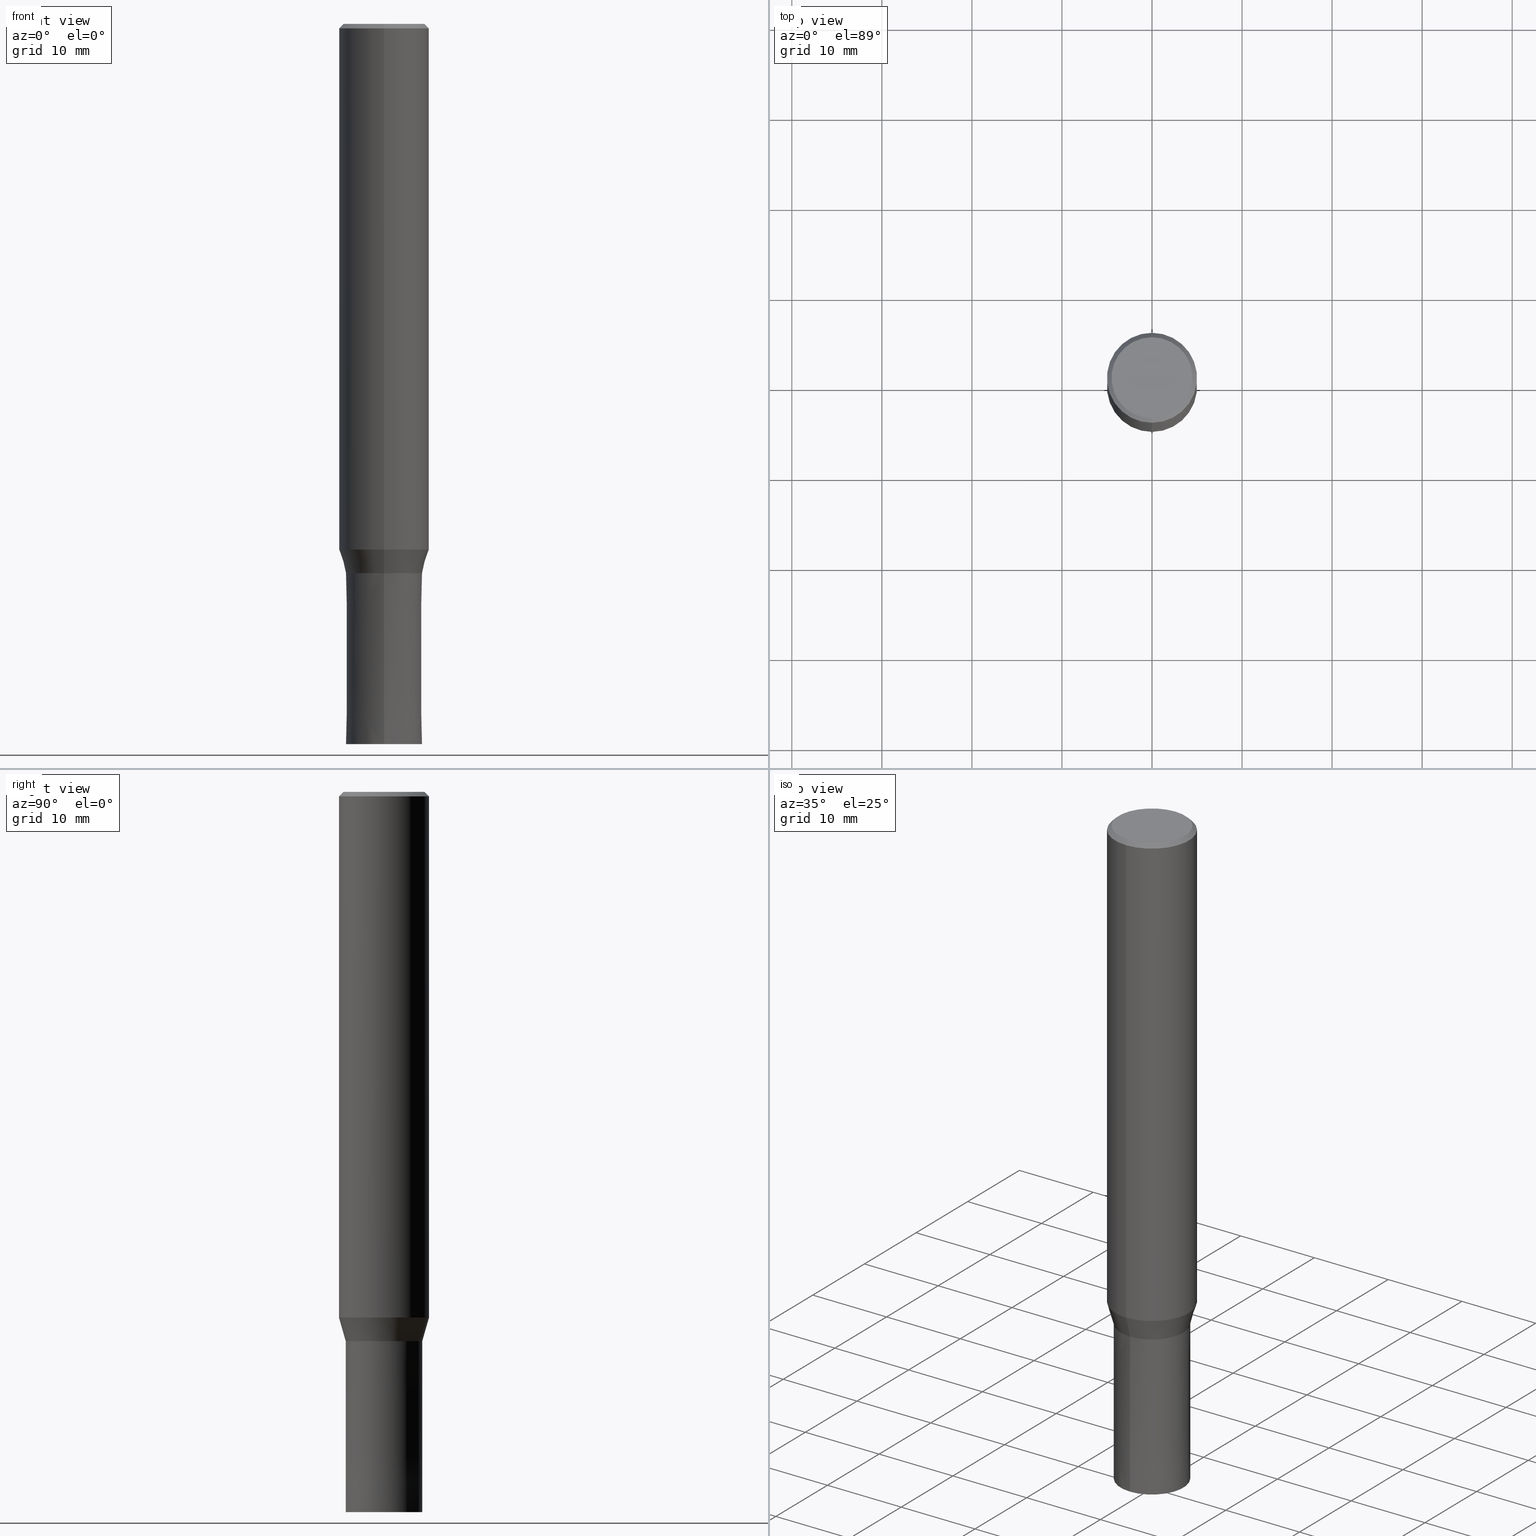
[diagram: canonical four-view strip — front | top / right | iso, engineering-drawing reading convention]
A machine part, canonical four-view strip (front | top / right | iso — engineering-drawing reading convention). The complete STEP part file that produces these views, byte-faithful:
ISO-10303-21;
HEADER;
FILE_DESCRIPTION(('no description'),'unknown implementation level');
FILE_NAME('CZS4085-1900-Huellk.stp','  ',('CIMSOURCE GmbH'),('CADClick - KiM GmbH - www.kimweb.de'),'unknown preprocess','ACIS','unknown authorization');
FILE_SCHEMA(('automotive_design'));
ENDSEC;
DATA;
#1=MECHANICAL_DESIGN_GEOMETRIC_PRESENTATION_REPRESENTATION(' ',(#14,#15,#16,#17,#18,#19,#20,#21,#22,#23,#24,#25,#26,#27,#28,#29,#30,#31,#32,#33,#34,#35,#36,#37,#38,#39,#40,#41,#42,#43,#44,#45,#46,#47,#48,#49,#50,#51,#52,#53,#54,#55,#56,#57,#58,#59,#60,#61,#62,#63,#64),#10);
#2=PRODUCT_DEFINITION_CONTEXT('',#65,'design');
#3=APPLICATION_PROTOCOL_DEFINITION('INTERNATIONAL STANDARD','automotive_design',1994,#65);
#4=PRODUCT_CATEGORY_RELATIONSHIP('NONE','NONE',#66,#67);
#5=SHAPE_DEFINITION_REPRESENTATION(#68,#69);
#6=PRODUCT_DEFINITION_CONTEXT('',#70,'design');
#7=APPLICATION_PROTOCOL_DEFINITION('INTERNATIONAL STANDARD','automotive_design',1994,#70);
#8=PRODUCT_CATEGORY_RELATIONSHIP('NONE','NONE',#71,#72);
#9=SHAPE_DEFINITION_REPRESENTATION(#73,#74);
#10= (GEOMETRIC_REPRESENTATION_CONTEXT(3)GLOBAL_UNCERTAINTY_ASSIGNED_CONTEXT((#77))GLOBAL_UNIT_ASSIGNED_CONTEXT((#79,#80,#81))REPRESENTATION_CONTEXT('NONE','WORKSPACE'));
#14=STYLED_ITEM('',(#83),#84);
#15=STYLED_ITEM('',(#85),#86);
#16=STYLED_ITEM('',(#87),#88);
#17=STYLED_ITEM('',(#89),#90);
#18=STYLED_ITEM('',(#91),#92);
#19=STYLED_ITEM('',(#93),#94);
#20=STYLED_ITEM('',(#95),#96);
#21=STYLED_ITEM('',(#97),#98);
#22=STYLED_ITEM('',(#99),#100);
#23=STYLED_ITEM('',(#101),#102);
#24=STYLED_ITEM('',(#103),#104);
#25=STYLED_ITEM('',(#105),#106);
#26=STYLED_ITEM('',(#107),#108);
#27=STYLED_ITEM('',(#109),#110);
#28=STYLED_ITEM('',(#111),#112);
#29=STYLED_ITEM('',(#113),#114);
#30=STYLED_ITEM('',(#115),#116);
#31=STYLED_ITEM('',(#117),#118);
#32=STYLED_ITEM('',(#119),#120);
#33=STYLED_ITEM('',(#121),#122);
#34=STYLED_ITEM('',(#123),#124);
#35=STYLED_ITEM('',(#125),#126);
#36=STYLED_ITEM('',(#127),#128);
#37=STYLED_ITEM('',(#129),#130);
#38=STYLED_ITEM('',(#131),#132);
#39=STYLED_ITEM('',(#133),#134);
#40=STYLED_ITEM('',(#135),#136);
#41=STYLED_ITEM('',(#137),#138);
#42=STYLED_ITEM('',(#139),#140);
#43=STYLED_ITEM('',(#141),#142);
#44=STYLED_ITEM('',(#143),#144);
#45=STYLED_ITEM('',(#145),#146);
#46=STYLED_ITEM('',(#147),#148);
#47=STYLED_ITEM('',(#149),#150);
#48=STYLED_ITEM('',(#151),#152);
#49=STYLED_ITEM('',(#153),#154);
#50=STYLED_ITEM('',(#155),#156);
#51=STYLED_ITEM('',(#157),#158);
#52=STYLED_ITEM('',(#159),#160);
#53=STYLED_ITEM('',(#161),#162);
#54=STYLED_ITEM('',(#163),#164);
#55=STYLED_ITEM('',(#165),#166);
#56=STYLED_ITEM('',(#167),#168);
#57=STYLED_ITEM('',(#169),#170);
#58=STYLED_ITEM('',(#171),#172);
#59=STYLED_ITEM('',(#173),#174);
#60=STYLED_ITEM('',(#175),#176);
#61=STYLED_ITEM('',(#177),#178);
#62=STYLED_ITEM('',(#179),#180);
#63=STYLED_ITEM('',(#181),#182);
#64=STYLED_ITEM('',(#183),#184);
#65=APPLICATION_CONTEXT(' ');
#66=PRODUCT_CATEGORY('part','NONE');
#67=PRODUCT_RELATED_PRODUCT_CATEGORY('detail',' ',(#185));
#68=PRODUCT_DEFINITION_SHAPE('NONE','NONE',#186);
#69=ADVANCED_BREP_SHAPE_REPRESENTATION('1',(#172,#187),#10);
#70=APPLICATION_CONTEXT(' ');
#71=PRODUCT_CATEGORY('part','NONE');
#72=PRODUCT_RELATED_PRODUCT_CATEGORY('detail',' ',(#188));
#73=PRODUCT_DEFINITION_SHAPE('NONE','NONE',#189);
#74=ADVANCED_BREP_SHAPE_REPRESENTATION('2',(#116,#190),#10);
#77=UNCERTAINTY_MEASURE_WITH_UNIT(LENGTH_MEASURE(1.0E-006),#79,'','');
#79= (CONVERSION_BASED_UNIT('MILLIMETRE',#193)LENGTH_UNIT()NAMED_UNIT(#196));
#80= (NAMED_UNIT(#198)PLANE_ANGLE_UNIT()SI_UNIT($,.RADIAN.));
#81= (NAMED_UNIT(#198)SOLID_ANGLE_UNIT()SI_UNIT($,.STERADIAN.));
#83=PRESENTATION_STYLE_ASSIGNMENT((#204));
#84=ADVANCED_FACE('',(#205),#206,.T.);
#85=PRESENTATION_STYLE_ASSIGNMENT((#207));
#86=VERTEX_POINT('',#208);
#87=PRESENTATION_STYLE_ASSIGNMENT((#209));
#88=VERTEX_POINT('',#210);
#89=PRESENTATION_STYLE_ASSIGNMENT((#211));
#90=EDGE_CURVE('',#124,#166,#212,.T.);
#91=PRESENTATION_STYLE_ASSIGNMENT((#213));
#92=VERTEX_POINT('',#214);
#93=PRESENTATION_STYLE_ASSIGNMENT((#215));
#94=EDGE_CURVE('',#140,#88,#216,.T.);
#95=PRESENTATION_STYLE_ASSIGNMENT((#217));
#96=EDGE_CURVE('',#124,#92,#218,.T.);
#97=PRESENTATION_STYLE_ASSIGNMENT((#219));
#98=EDGE_CURVE('',#150,#136,#220,.T.);
#99=PRESENTATION_STYLE_ASSIGNMENT((#221));
#100=EDGE_CURVE('',#180,#182,#222,.T.);
#101=PRESENTATION_STYLE_ASSIGNMENT((#223));
#102=ADVANCED_FACE('',(#224),#225,.T.);
#103=PRESENTATION_STYLE_ASSIGNMENT((#226));
#104=ADVANCED_FACE('',(#227),#228,.T.);
#105=PRESENTATION_STYLE_ASSIGNMENT((#229));
#106=EDGE_CURVE('',#150,#88,#230,.T.);
#107=PRESENTATION_STYLE_ASSIGNMENT((#231));
#108=VERTEX_POINT('',#232);
#109=PRESENTATION_STYLE_ASSIGNMENT((#233));
#110=EDGE_CURVE('',#182,#180,#234,.T.);
#111=PRESENTATION_STYLE_ASSIGNMENT((#235));
#112=EDGE_CURVE('',#108,#174,#236,.T.);
#113=PRESENTATION_STYLE_ASSIGNMENT((#237));
#114=EDGE_CURVE('',#92,#124,#238,.T.);
#115=PRESENTATION_STYLE_ASSIGNMENT((#239));
#116=MANIFOLD_SOLID_BREP('2',#240);
#117=PRESENTATION_STYLE_ASSIGNMENT((#241));
#118=EDGE_CURVE('',#166,#156,#242,.T.);
#119=PRESENTATION_STYLE_ASSIGNMENT((#243));
#120=EDGE_CURVE('',#86,#144,#244,.T.);
#121=PRESENTATION_STYLE_ASSIGNMENT((#245));
#122=ADVANCED_FACE('',(#246),#247,.T.);
#123=PRESENTATION_STYLE_ASSIGNMENT((#248));
#124=VERTEX_POINT('',#249);
#125=PRESENTATION_STYLE_ASSIGNMENT((#250));
#126=EDGE_CURVE('',#174,#108,#251,.T.);
#127=PRESENTATION_STYLE_ASSIGNMENT((#252));
#128=EDGE_CURVE('',#156,#166,#253,.T.);
#129=PRESENTATION_STYLE_ASSIGNMENT((#254));
#130=ADVANCED_FACE('',(#255),#256,.T.);
#131=PRESENTATION_STYLE_ASSIGNMENT((#257));
#132=ADVANCED_FACE('',(#258),#259,.T.);
#133=PRESENTATION_STYLE_ASSIGNMENT((#260));
#134=EDGE_CURVE('',#136,#150,#261,.T.);
#135=PRESENTATION_STYLE_ASSIGNMENT((#262));
#136=VERTEX_POINT('',#263);
#137=PRESENTATION_STYLE_ASSIGNMENT((#264));
#138=EDGE_CURVE('',#140,#136,#265,.T.);
#139=PRESENTATION_STYLE_ASSIGNMENT((#266));
#140=VERTEX_POINT('',#267);
#141=PRESENTATION_STYLE_ASSIGNMENT((#268));
#142=EDGE_CURVE('',#174,#144,#269,.T.);
#143=PRESENTATION_STYLE_ASSIGNMENT((#270));
#144=VERTEX_POINT('',#271);
#145=PRESENTATION_STYLE_ASSIGNMENT((#272));
#146=EDGE_CURVE('',#182,#140,#273,.T.);
#147=PRESENTATION_STYLE_ASSIGNMENT((#274));
#148=ADVANCED_FACE('',(#275),#276,.T.);
#149=PRESENTATION_STYLE_ASSIGNMENT((#277));
#150=VERTEX_POINT('',#278);
#151=PRESENTATION_STYLE_ASSIGNMENT((#279));
#152=ADVANCED_FACE('',(#280,#281),#282,.T.);
#153=PRESENTATION_STYLE_ASSIGNMENT((#283));
#154=EDGE_CURVE('',#88,#140,#284,.T.);
#155=PRESENTATION_STYLE_ASSIGNMENT((#285));
#156=VERTEX_POINT('',#286);
#157=PRESENTATION_STYLE_ASSIGNMENT((#287));
#158=ADVANCED_FACE('',(#288),#289,.T.);
#159=PRESENTATION_STYLE_ASSIGNMENT((#290));
#160=ADVANCED_FACE('',(#291),#292,.T.);
#161=PRESENTATION_STYLE_ASSIGNMENT((#293));
#162=EDGE_CURVE('',#88,#180,#294,.T.);
#163=PRESENTATION_STYLE_ASSIGNMENT((#295));
#164=EDGE_CURVE('',#156,#92,#296,.T.);
#165=PRESENTATION_STYLE_ASSIGNMENT((#297));
#166=VERTEX_POINT('',#298);
#167=PRESENTATION_STYLE_ASSIGNMENT((#299));
#168=ADVANCED_FACE('',(#300),#301,.T.);
#169=PRESENTATION_STYLE_ASSIGNMENT((#302));
#170=ADVANCED_FACE('',(#303),#304,.T.);
#171=PRESENTATION_STYLE_ASSIGNMENT((#305));
#172=MANIFOLD_SOLID_BREP('1',#306);
#173=PRESENTATION_STYLE_ASSIGNMENT((#307));
#174=VERTEX_POINT('',#308);
#175=PRESENTATION_STYLE_ASSIGNMENT((#309));
#176=ADVANCED_FACE('',(#310),#311,.T.);
#177=PRESENTATION_STYLE_ASSIGNMENT((#312));
#178=EDGE_CURVE('',#144,#86,#313,.T.);
#179=PRESENTATION_STYLE_ASSIGNMENT((#314));
#180=VERTEX_POINT('',#315);
#181=PRESENTATION_STYLE_ASSIGNMENT((#316));
#182=VERTEX_POINT('',#317);
#183=PRESENTATION_STYLE_ASSIGNMENT((#318));
#184=EDGE_CURVE('',#86,#108,#319,.T.);
#185=PRODUCT('1','1','PART-1-DESC',(#320));
#186=PRODUCT_DEFINITION('NONE','NONE',#321,#2);
#187=AXIS2_PLACEMENT_3D('',#322,#323,#324);
#188=PRODUCT('2','2','PART-2-DESC',(#325));
#189=PRODUCT_DEFINITION('NONE','NONE',#326,#6);
#190=AXIS2_PLACEMENT_3D('',#327,#328,#329);
#193=LENGTH_MEASURE_WITH_UNIT(LENGTH_MEASURE(1.0),#330);
#196=DIMENSIONAL_EXPONENTS(1.0,0.0,0.0,0.0,0.0,0.0,0.0);
#198=DIMENSIONAL_EXPONENTS(0.0,0.0,0.0,0.0,0.0,0.0,0.0);
#204=SURFACE_STYLE_USAGE(.BOTH.,#331);
#205=FACE_OUTER_BOUND('',#332,.T.);
#206=CONICAL_SURFACE('',#333,4.24995,5.26315789467598E-006);
#207=POINT_STYLE(' ',#334,POSITIVE_LENGTH_MEASURE(1.0E-006),#335);
#208=CARTESIAN_POINT('',(5.20451577342741E-016,-4.24995,-61.0));
#209=POINT_STYLE(' ',#336,POSITIVE_LENGTH_MEASURE(1.0E-006),#337);
#210=CARTESIAN_POINT('',(6.12303176911189E-016,-5.0,-0.5));
#211=CURVE_STYLE('',#338,POSITIVE_LENGTH_MEASURE(1.0E-006),#339);
#212=LINE('',#340,#341);
#213=POINT_STYLE(' ',#342,POSITIVE_LENGTH_MEASURE(1.0E-006),#343);
#214=CARTESIAN_POINT('',(5.20445454310972E-016,-4.2499,-61.0));
#215=CURVE_STYLE('',#344,POSITIVE_LENGTH_MEASURE(1.0E-006),#345);
#216=CIRCLE('',#346,5.0);
#217=CURVE_STYLE('',#347,POSITIVE_LENGTH_MEASURE(1.0E-006),#348);
#218=CIRCLE('',#349,4.2499);
#219=CURVE_STYLE('',#350,POSITIVE_LENGTH_MEASURE(1.0E-006),#351);
#220=CIRCLE('',#352,5.0);
#221=CURVE_STYLE('',#353,POSITIVE_LENGTH_MEASURE(1.0E-006),#354);
#222=CIRCLE('',#355,4.5);
#223=SURFACE_STYLE_USAGE(.BOTH.,#356);
#224=FACE_OUTER_BOUND('',#357,.T.);
#225=PLANE('',#358);
#226=SURFACE_STYLE_USAGE(.BOTH.,#359);
#227=FACE_OUTER_BOUND('',#360,.T.);
#228=CONICAL_SURFACE('',#361,4.62495,0.279208199033747);
#229=CURVE_STYLE('',#362,POSITIVE_LENGTH_MEASURE(1.0E-006),#363);
#230=LINE('',#364,#365);
#231=POINT_STYLE(' ',#366,POSITIVE_LENGTH_MEASURE(1.0E-006),#367);
#232=CARTESIAN_POINT('',(6.12297053879419E-016,-4.99995,-58.384));
#233=CURVE_STYLE('',#368,POSITIVE_LENGTH_MEASURE(1.0E-006),#369);
#234=CIRCLE('',#370,4.5);
#235=CURVE_STYLE('',#371,POSITIVE_LENGTH_MEASURE(1.0E-006),#372);
#236=CIRCLE('',#373,4.99995);
#237=CURVE_STYLE('',#374,POSITIVE_LENGTH_MEASURE(1.0E-006),#375);
#238=CIRCLE('',#376,4.2499);
#239=SURFACE_STYLE_USAGE(.BOTH.,#377);
#240=CLOSED_SHELL('',(#84,#160,#132,#102));
#241=CURVE_STYLE('',#378,POSITIVE_LENGTH_MEASURE(1.0E-006),#379);
#242=CIRCLE('',#380,4.25);
#243=CURVE_STYLE('',#381,POSITIVE_LENGTH_MEASURE(1.0E-006),#382);
#244=CIRCLE('',#383,4.24995);
#245=SURFACE_STYLE_USAGE(.BOTH.,#384);
#246=FACE_OUTER_BOUND('',#385,.T.);
#247=CYLINDRICAL_SURFACE('',#386,5.0);
#248=POINT_STYLE(' ',#387,POSITIVE_LENGTH_MEASURE(1.0E-006),#388);
#249=CARTESIAN_POINT('',(0.0,4.2499,-61.0));
#250=CURVE_STYLE('',#389,POSITIVE_LENGTH_MEASURE(1.0E-006),#390);
#251=CIRCLE('',#391,4.99995);
#252=CURVE_STYLE('',#392,POSITIVE_LENGTH_MEASURE(1.0E-006),#393);
#253=CIRCLE('',#394,4.25);
#254=SURFACE_STYLE_USAGE(.BOTH.,#395);
#255=FACE_OUTER_BOUND('',#396,.T.);
#256=PLANE('',#397);
#257=SURFACE_STYLE_USAGE(.BOTH.,#398);
#258=FACE_OUTER_BOUND('',#399,.T.);
#259=CONICAL_SURFACE('',#400,4.24995,5.26315789467598E-006);
#260=CURVE_STYLE('',#401,POSITIVE_LENGTH_MEASURE(1.0E-006),#402);
#261=CIRCLE('',#403,5.0);
#262=POINT_STYLE(' ',#404,POSITIVE_LENGTH_MEASURE(1.0E-006),#405);
#263=CARTESIAN_POINT('',(0.0,5.0,-58.384));
#264=CURVE_STYLE('',#406,POSITIVE_LENGTH_MEASURE(1.0E-006),#407);
#265=LINE('',#408,#409);
#266=POINT_STYLE(' ',#410,POSITIVE_LENGTH_MEASURE(1.0E-006),#411);
#267=CARTESIAN_POINT('',(0.0,5.0,-0.5));
#268=CURVE_STYLE('',#412,POSITIVE_LENGTH_MEASURE(1.0E-006),#413);
#269=LINE('',#414,#415);
#270=POINT_STYLE(' ',#416,POSITIVE_LENGTH_MEASURE(1.0E-006),#417);
#271=CARTESIAN_POINT('',(0.0,4.24995,-61.0));
#272=CURVE_STYLE('',#418,POSITIVE_LENGTH_MEASURE(1.0E-006),#419);
#273=LINE('',#420,#421);
#274=SURFACE_STYLE_USAGE(.BOTH.,#422);
#275=FACE_OUTER_BOUND('',#423,.T.);
#276=CYLINDRICAL_SURFACE('',#424,5.0);
#277=POINT_STYLE(' ',#425,POSITIVE_LENGTH_MEASURE(1.0E-006),#426);
#278=CARTESIAN_POINT('',(6.12303176911189E-016,-5.0,-58.384));
#279=SURFACE_STYLE_USAGE(.BOTH.,#427);
#280=FACE_OUTER_BOUND('',#428,.T.);
#281=FACE_BOUND('',#429,.T.);
#282=PLANE('',#430);
#283=CURVE_STYLE('',#431,POSITIVE_LENGTH_MEASURE(1.0E-006),#432);
#284=CIRCLE('',#433,5.0);
#285=POINT_STYLE(' ',#434,POSITIVE_LENGTH_MEASURE(1.0E-006),#435);
#286=CARTESIAN_POINT('',(5.2045770037451E-016,-4.25,-80.0));
#287=SURFACE_STYLE_USAGE(.BOTH.,#436);
#288=FACE_OUTER_BOUND('',#437,.T.);
#289=CONICAL_SURFACE('',#438,4.75,0.785398163397448);
#290=SURFACE_STYLE_USAGE(.BOTH.,#439);
#291=FACE_OUTER_BOUND('',#440,.T.);
#292=PLANE('',#441);
#293=CURVE_STYLE('',#442,POSITIVE_LENGTH_MEASURE(1.0E-006),#443);
#294=LINE('',#444,#445);
#295=CURVE_STYLE('',#446,POSITIVE_LENGTH_MEASURE(1.0E-006),#447);
#296=LINE('',#448,#449);
#297=POINT_STYLE(' ',#450,POSITIVE_LENGTH_MEASURE(1.0E-006),#451);
#298=CARTESIAN_POINT('',(0.0,4.25,-80.0));
#299=SURFACE_STYLE_USAGE(.BOTH.,#452);
#300=FACE_OUTER_BOUND('',#453,.T.);
#301=PLANE('',#454);
#302=SURFACE_STYLE_USAGE(.BOTH.,#455);
#303=FACE_OUTER_BOUND('',#456,.T.);
#304=CONICAL_SURFACE('',#457,4.62495,0.279208199033747);
#305=SURFACE_STYLE_USAGE(.BOTH.,#458);
#306=CLOSED_SHELL('',(#104,#148,#158,#152,#168,#176,#122,#170,#130));
#307=POINT_STYLE(' ',#459,POSITIVE_LENGTH_MEASURE(1.0E-006),#460);
#308=CARTESIAN_POINT('',(0.0,4.99995,-58.384));
#309=SURFACE_STYLE_USAGE(.BOTH.,#461);
#310=FACE_OUTER_BOUND('',#462,.T.);
#311=CONICAL_SURFACE('',#463,4.75,0.785398163397448);
#312=CURVE_STYLE('',#464,POSITIVE_LENGTH_MEASURE(1.0E-006),#465);
#313=CIRCLE('',#466,4.24995);
#314=POINT_STYLE(' ',#467,POSITIVE_LENGTH_MEASURE(1.0E-006),#468);
#315=CARTESIAN_POINT('',(5.5107285922007E-016,-4.5,0.0));
#316=POINT_STYLE(' ',#469,POSITIVE_LENGTH_MEASURE(1.0E-006),#470);
#317=CARTESIAN_POINT('',(0.0,4.5,0.0));
#318=CURVE_STYLE('',#471,POSITIVE_LENGTH_MEASURE(1.0E-006),#472);
#319=LINE('',#473,#474);
#320=PRODUCT_CONTEXT('',#65,'mechanical');
#321=PRODUCT_DEFINITION_FORMATION_WITH_SPECIFIED_SOURCE(' ','NONE',#185,.NOT_KNOWN.);
#322=CARTESIAN_POINT('',(0.0,0.0,0.0));
#323=DIRECTION('',(0.0,0.0,1.0));
#324=DIRECTION('',(1.0,0.0,0.0));
#325=PRODUCT_CONTEXT('',#70,'mechanical');
#326=PRODUCT_DEFINITION_FORMATION_WITH_SPECIFIED_SOURCE(' ','NONE',#188,.NOT_KNOWN.);
#327=CARTESIAN_POINT('',(0.0,0.0,0.0));
#328=DIRECTION('',(0.0,0.0,1.0));
#329=DIRECTION('',(1.0,0.0,0.0));
#330= (NAMED_UNIT(#196)LENGTH_UNIT()SI_UNIT(.MILLI.,.METRE.));
#331=SURFACE_SIDE_STYLE('',(#476));
#332=EDGE_LOOP('',(#477,#478,#479,#480));
#333=AXIS2_PLACEMENT_3D('',#481,#482,#483);
#334=PRE_DEFINED_MARKER('');
#335=COLOUR_RGB('',0.498039215803146,0.498039215803146,0.498039215803146);
#336=PRE_DEFINED_MARKER('');
#337=COLOUR_RGB('',0.498039215803146,0.498039215803146,0.498039215803146);
#338=DRAUGHTING_PRE_DEFINED_CURVE_FONT('continuous');
#339=COLOUR_RGB('',0.800000011920929,0.800000011920929,0.800000011920929);
#340=CARTESIAN_POINT('',(-5.20451577342741E-016,4.24995,-70.5));
#341=VECTOR('',#484,1.0);
#342=PRE_DEFINED_MARKER('');
#343=COLOUR_RGB('',0.800000011920929,0.800000011920929,0.800000011920929);
#344=DRAUGHTING_PRE_DEFINED_CURVE_FONT('continuous');
#345=COLOUR_RGB('',0.498039215803146,0.498039215803146,0.498039215803146);
#346=AXIS2_PLACEMENT_3D('',#485,#486,#487);
#347=DRAUGHTING_PRE_DEFINED_CURVE_FONT('continuous');
#348=COLOUR_RGB('',0.800000011920929,0.800000011920929,0.800000011920929);
#349=AXIS2_PLACEMENT_3D('',#488,#489,#490);
#350=DRAUGHTING_PRE_DEFINED_CURVE_FONT('continuous');
#351=COLOUR_RGB('',0.498039215803146,0.498039215803146,0.498039215803146);
#352=AXIS2_PLACEMENT_3D('',#491,#492,#493);
#353=DRAUGHTING_PRE_DEFINED_CURVE_FONT('continuous');
#354=COLOUR_RGB('',0.498039215803146,0.498039215803146,0.498039215803146);
#355=AXIS2_PLACEMENT_3D('',#494,#495,#496);
#356=SURFACE_SIDE_STYLE('',(#497));
#357=EDGE_LOOP('',(#498,#499));
#358=AXIS2_PLACEMENT_3D('',#500,#501,#502);
#359=SURFACE_SIDE_STYLE('',(#503));
#360=EDGE_LOOP('',(#504,#505,#506,#507));
#361=AXIS2_PLACEMENT_3D('',#508,#509,#510);
#362=DRAUGHTING_PRE_DEFINED_CURVE_FONT('continuous');
#363=COLOUR_RGB('',0.498039215803146,0.498039215803146,0.498039215803146);
#364=CARTESIAN_POINT('',(6.12303176911189E-016,-5.0,-29.442));
#365=VECTOR('',#511,1.0);
#366=PRE_DEFINED_MARKER('');
#367=COLOUR_RGB('',0.498039215803146,0.498039215803146,0.498039215803146);
#368=DRAUGHTING_PRE_DEFINED_CURVE_FONT('continuous');
#369=COLOUR_RGB('',0.498039215803146,0.498039215803146,0.498039215803146);
#370=AXIS2_PLACEMENT_3D('',#512,#513,#514);
#371=DRAUGHTING_PRE_DEFINED_CURVE_FONT('continuous');
#372=COLOUR_RGB('',0.498039215803146,0.498039215803146,0.498039215803146);
#373=AXIS2_PLACEMENT_3D('',#515,#516,#517);
#374=DRAUGHTING_PRE_DEFINED_CURVE_FONT('continuous');
#375=COLOUR_RGB('',0.800000011920929,0.800000011920929,0.800000011920929);
#376=AXIS2_PLACEMENT_3D('',#518,#519,#520);
#377=SURFACE_SIDE_STYLE('',(#521));
#378=DRAUGHTING_PRE_DEFINED_CURVE_FONT('continuous');
#379=COLOUR_RGB('',0.800000011920929,0.800000011920929,0.800000011920929);
#380=AXIS2_PLACEMENT_3D('',#522,#523,#524);
#381=DRAUGHTING_PRE_DEFINED_CURVE_FONT('continuous');
#382=COLOUR_RGB('',0.498039215803146,0.498039215803146,0.498039215803146);
#383=AXIS2_PLACEMENT_3D('',#525,#526,#527);
#384=SURFACE_SIDE_STYLE('',(#528));
#385=EDGE_LOOP('',(#529,#530,#531,#532));
#386=AXIS2_PLACEMENT_3D('',#533,#534,#535);
#387=PRE_DEFINED_MARKER('');
#388=COLOUR_RGB('',0.800000011920929,0.800000011920929,0.800000011920929);
#389=DRAUGHTING_PRE_DEFINED_CURVE_FONT('continuous');
#390=COLOUR_RGB('',0.498039215803146,0.498039215803146,0.498039215803146);
#391=AXIS2_PLACEMENT_3D('',#536,#537,#538);
#392=DRAUGHTING_PRE_DEFINED_CURVE_FONT('continuous');
#393=COLOUR_RGB('',0.800000011920929,0.800000011920929,0.800000011920929);
#394=AXIS2_PLACEMENT_3D('',#539,#540,#541);
#395=SURFACE_SIDE_STYLE('',(#542));
#396=EDGE_LOOP('',(#543,#544));
#397=AXIS2_PLACEMENT_3D('',#545,#546,#547);
#398=SURFACE_SIDE_STYLE('',(#548));
#399=EDGE_LOOP('',(#549,#550,#551,#552));
#400=AXIS2_PLACEMENT_3D('',#553,#554,#555);
#401=DRAUGHTING_PRE_DEFINED_CURVE_FONT('continuous');
#402=COLOUR_RGB('',0.498039215803146,0.498039215803146,0.498039215803146);
#403=AXIS2_PLACEMENT_3D('',#556,#557,#558);
#404=PRE_DEFINED_MARKER('');
#405=COLOUR_RGB('',0.498039215803146,0.498039215803146,0.498039215803146);
#406=DRAUGHTING_PRE_DEFINED_CURVE_FONT('continuous');
#407=COLOUR_RGB('',0.498039215803146,0.498039215803146,0.498039215803146);
#408=CARTESIAN_POINT('',(-6.12303176911189E-016,5.0,-29.442));
#409=VECTOR('',#559,1.0);
#410=PRE_DEFINED_MARKER('');
#411=COLOUR_RGB('',0.498039215803146,0.498039215803146,0.498039215803146);
#412=DRAUGHTING_PRE_DEFINED_CURVE_FONT('continuous');
#413=COLOUR_RGB('',0.498039215803146,0.498039215803146,0.498039215803146);
#414=CARTESIAN_POINT('',(-5.6637431561108E-016,4.62495,-59.692));
#415=VECTOR('',#560,1.0);
#416=PRE_DEFINED_MARKER('');
#417=COLOUR_RGB('',0.498039215803146,0.498039215803146,0.498039215803146);
#418=DRAUGHTING_PRE_DEFINED_CURVE_FONT('continuous');
#419=COLOUR_RGB('',0.498039215803146,0.498039215803146,0.498039215803146);
#420=CARTESIAN_POINT('',(-5.81688018065629E-016,4.75,-0.25));
#421=VECTOR('',#561,1.0);
#422=SURFACE_SIDE_STYLE('',(#562));
#423=EDGE_LOOP('',(#563,#564,#565,#566));
#424=AXIS2_PLACEMENT_3D('',#567,#568,#569);
#425=PRE_DEFINED_MARKER('');
#426=COLOUR_RGB('',0.498039215803146,0.498039215803146,0.498039215803146);
#427=SURFACE_SIDE_STYLE('',(#570));
#428=EDGE_LOOP('',(#571,#572));
#429=EDGE_LOOP('',(#573,#574));
#430=AXIS2_PLACEMENT_3D('',#575,#576,#577);
#431=DRAUGHTING_PRE_DEFINED_CURVE_FONT('continuous');
#432=COLOUR_RGB('',0.498039215803146,0.498039215803146,0.498039215803146);
#433=AXIS2_PLACEMENT_3D('',#578,#579,#580);
#434=PRE_DEFINED_MARKER('');
#435=COLOUR_RGB('',0.800000011920929,0.800000011920929,0.800000011920929);
#436=SURFACE_SIDE_STYLE('',(#581));
#437=EDGE_LOOP('',(#582,#583,#584,#585));
#438=AXIS2_PLACEMENT_3D('',#586,#587,#588);
#439=SURFACE_SIDE_STYLE('',(#589));
#440=EDGE_LOOP('',(#590,#591));
#441=AXIS2_PLACEMENT_3D('',#592,#593,#594);
#442=DRAUGHTING_PRE_DEFINED_CURVE_FONT('continuous');
#443=COLOUR_RGB('',0.498039215803146,0.498039215803146,0.498039215803146);
#444=CARTESIAN_POINT('',(5.81688018065629E-016,-4.75,-0.25));
#445=VECTOR('',#595,1.0);
#446=DRAUGHTING_PRE_DEFINED_CURVE_FONT('continuous');
#447=COLOUR_RGB('',0.800000011920929,0.800000011920929,0.800000011920929);
#448=CARTESIAN_POINT('',(5.20451577342741E-016,-4.24995,-70.5));
#449=VECTOR('',#596,1.0);
#450=PRE_DEFINED_MARKER('');
#451=COLOUR_RGB('',0.800000011920929,0.800000011920929,0.800000011920929);
#452=SURFACE_SIDE_STYLE('',(#597));
#453=EDGE_LOOP('',(#598,#599));
#454=AXIS2_PLACEMENT_3D('',#600,#601,#602);
#455=SURFACE_SIDE_STYLE('',(#603));
#456=EDGE_LOOP('',(#604,#605,#606,#607));
#457=AXIS2_PLACEMENT_3D('',#608,#609,#610);
#458=SURFACE_SIDE_STYLE('',(#611));
#459=PRE_DEFINED_MARKER('');
#460=COLOUR_RGB('',0.498039215803146,0.498039215803146,0.498039215803146);
#461=SURFACE_SIDE_STYLE('',(#612));
#462=EDGE_LOOP('',(#613,#614,#615,#616));
#463=AXIS2_PLACEMENT_3D('',#617,#618,#619);
#464=DRAUGHTING_PRE_DEFINED_CURVE_FONT('continuous');
#465=COLOUR_RGB('',0.498039215803146,0.498039215803146,0.498039215803146);
#466=AXIS2_PLACEMENT_3D('',#620,#621,#622);
#467=PRE_DEFINED_MARKER('');
#468=COLOUR_RGB('',0.498039215803146,0.498039215803146,0.498039215803146);
#469=PRE_DEFINED_MARKER('');
#470=COLOUR_RGB('',0.498039215803146,0.498039215803146,0.498039215803146);
#471=DRAUGHTING_PRE_DEFINED_CURVE_FONT('continuous');
#472=COLOUR_RGB('',0.498039215803146,0.498039215803146,0.498039215803146);
#473=CARTESIAN_POINT('',(5.6637431561108E-016,-4.62495,-59.692));
#474=VECTOR('',#623,1.0);
#476=SURFACE_STYLE_FILL_AREA(#624);
#477=ORIENTED_EDGE('',*,*,#90,.F.);
#478=ORIENTED_EDGE('',*,*,#96,.T.);
#479=ORIENTED_EDGE('',*,*,#164,.F.);
#480=ORIENTED_EDGE('',*,*,#118,.F.);
#481=CARTESIAN_POINT('',(0.0,0.0,-70.5));
#482=DIRECTION('',(0.0,-0.0,-1.0));
#483=DIRECTION('',(0.0,1.0,0.0));
#484=DIRECTION('',(-6.44529659896085E-022,5.26315789465168E-006,-0.99999999998615));
#485=CARTESIAN_POINT('',(0.0,0.0,-0.5));
#486=DIRECTION('',(0.0,0.0,-1.0));
#487=DIRECTION('',(0.0,1.0,0.0));
#488=CARTESIAN_POINT('',(0.0,0.0,-61.0));
#489=DIRECTION('',(0.0,0.0,-1.0));
#490=DIRECTION('',(0.0,1.0,0.0));
#491=CARTESIAN_POINT('',(0.0,0.0,-58.384));
#492=DIRECTION('',(0.0,0.0,-1.0));
#493=DIRECTION('',(0.0,1.0,0.0));
#494=CARTESIAN_POINT('',(0.0,0.0,0.0));
#495=DIRECTION('',(0.0,0.0,-1.0));
#496=DIRECTION('',(0.0,1.0,0.0));
#497=SURFACE_STYLE_FILL_AREA(#625);
#498=ORIENTED_EDGE('',*,*,#118,.T.);
#499=ORIENTED_EDGE('',*,*,#128,.T.);
#500=CARTESIAN_POINT('',(0.0,2.1225,-80.0));
#501=DIRECTION('',(0.0,0.0,-1.0));
#502=DIRECTION('',(0.0,1.0,0.0));
#503=SURFACE_STYLE_FILL_AREA(#626);
#504=ORIENTED_EDGE('',*,*,#142,.F.);
#505=ORIENTED_EDGE('',*,*,#126,.T.);
#506=ORIENTED_EDGE('',*,*,#184,.F.);
#507=ORIENTED_EDGE('',*,*,#178,.F.);
#508=CARTESIAN_POINT('',(0.0,0.0,-59.692));
#509=DIRECTION('',(-0.0,-0.0,1.0));
#510=DIRECTION('',(0.0,1.0,0.0));
#511=DIRECTION('',(-0.0,-0.0,1.0));
#512=CARTESIAN_POINT('',(0.0,0.0,0.0));
#513=DIRECTION('',(0.0,0.0,-1.0));
#514=DIRECTION('',(0.0,1.0,0.0));
#515=CARTESIAN_POINT('',(0.0,0.0,-58.384));
#516=DIRECTION('',(0.0,0.0,-1.0));
#517=DIRECTION('',(0.0,1.0,0.0));
#518=CARTESIAN_POINT('',(0.0,0.0,-61.0));
#519=DIRECTION('',(0.0,0.0,-1.0));
#520=DIRECTION('',(0.0,1.0,0.0));
#521=SURFACE_STYLE_FILL_AREA(#627);
#522=CARTESIAN_POINT('',(0.0,0.0,-80.0));
#523=DIRECTION('',(0.0,0.0,-1.0));
#524=DIRECTION('',(0.0,1.0,0.0));
#525=CARTESIAN_POINT('',(0.0,0.0,-61.0));
#526=DIRECTION('',(0.0,0.0,-1.0));
#527=DIRECTION('',(0.0,1.0,0.0));
#528=SURFACE_STYLE_FILL_AREA(#628);
#529=ORIENTED_EDGE('',*,*,#138,.T.);
#530=ORIENTED_EDGE('',*,*,#98,.F.);
#531=ORIENTED_EDGE('',*,*,#106,.T.);
#532=ORIENTED_EDGE('',*,*,#154,.T.);
#533=CARTESIAN_POINT('',(0.0,0.0,-29.442));
#534=DIRECTION('',(-0.0,-0.0,1.0));
#535=DIRECTION('',(0.0,1.0,0.0));
#536=CARTESIAN_POINT('',(0.0,0.0,-58.384));
#537=DIRECTION('',(0.0,0.0,-1.0));
#538=DIRECTION('',(0.0,1.0,0.0));
#539=CARTESIAN_POINT('',(0.0,0.0,-80.0));
#540=DIRECTION('',(0.0,0.0,-1.0));
#541=DIRECTION('',(0.0,1.0,0.0));
#542=SURFACE_STYLE_FILL_AREA(#629);
#543=ORIENTED_EDGE('',*,*,#178,.T.);
#544=ORIENTED_EDGE('',*,*,#120,.T.);
#545=CARTESIAN_POINT('',(0.0,2.124975,-61.0));
#546=DIRECTION('',(0.0,0.0,-1.0));
#547=DIRECTION('',(0.0,1.0,0.0));
#548=SURFACE_STYLE_FILL_AREA(#630);
#549=ORIENTED_EDGE('',*,*,#90,.T.);
#550=ORIENTED_EDGE('',*,*,#128,.F.);
#551=ORIENTED_EDGE('',*,*,#164,.T.);
#552=ORIENTED_EDGE('',*,*,#114,.T.);
#553=CARTESIAN_POINT('',(0.0,0.0,-70.5));
#554=DIRECTION('',(0.0,-0.0,-1.0));
#555=DIRECTION('',(0.0,1.0,0.0));
#556=CARTESIAN_POINT('',(0.0,0.0,-58.384));
#557=DIRECTION('',(0.0,0.0,-1.0));
#558=DIRECTION('',(0.0,1.0,0.0));
#559=DIRECTION('',(0.0,0.0,-1.0));
#560=DIRECTION('',(3.37494895041124E-017,-0.275594597388538,-0.961273955691222));
#561=DIRECTION('',(-8.65927457071936E-017,0.707106781186548,-0.707106781186548));
#562=SURFACE_STYLE_FILL_AREA(#631);
#563=ORIENTED_EDGE('',*,*,#138,.F.);
#564=ORIENTED_EDGE('',*,*,#94,.T.);
#565=ORIENTED_EDGE('',*,*,#106,.F.);
#566=ORIENTED_EDGE('',*,*,#134,.F.);
#567=CARTESIAN_POINT('',(0.0,0.0,-29.442));
#568=DIRECTION('',(-0.0,-0.0,1.0));
#569=DIRECTION('',(0.0,1.0,0.0));
#570=SURFACE_STYLE_FILL_AREA(#632);
#571=ORIENTED_EDGE('',*,*,#134,.T.);
#572=ORIENTED_EDGE('',*,*,#98,.T.);
#573=ORIENTED_EDGE('',*,*,#126,.F.);
#574=ORIENTED_EDGE('',*,*,#112,.F.);
#575=CARTESIAN_POINT('',(0.0,2.5,-58.384));
#576=DIRECTION('',(0.0,0.0,-1.0));
#577=DIRECTION('',(0.0,1.0,0.0));
#578=CARTESIAN_POINT('',(0.0,0.0,-0.5));
#579=DIRECTION('',(0.0,0.0,-1.0));
#580=DIRECTION('',(0.0,1.0,0.0));
#581=SURFACE_STYLE_FILL_AREA(#633);
#582=ORIENTED_EDGE('',*,*,#146,.F.);
#583=ORIENTED_EDGE('',*,*,#110,.T.);
#584=ORIENTED_EDGE('',*,*,#162,.F.);
#585=ORIENTED_EDGE('',*,*,#94,.F.);
#586=CARTESIAN_POINT('',(0.0,0.0,-0.25));
#587=DIRECTION('',(0.0,-0.0,-1.0));
#588=DIRECTION('',(0.0,1.0,0.0));
#589=SURFACE_STYLE_FILL_AREA(#634);
#590=ORIENTED_EDGE('',*,*,#96,.F.);
#591=ORIENTED_EDGE('',*,*,#114,.F.);
#592=CARTESIAN_POINT('',(0.0,2.12495,-61.0));
#593=DIRECTION('',(-0.0,0.0,1.0));
#594=DIRECTION('',(0.0,-1.0,0.0));
#595=DIRECTION('',(-8.65927457071936E-017,0.707106781186548,0.707106781186548));
#596=DIRECTION('',(-6.44529659896085E-022,5.26315789465168E-006,0.99999999998615));
#597=SURFACE_STYLE_FILL_AREA(#635);
#598=ORIENTED_EDGE('',*,*,#110,.F.);
#599=ORIENTED_EDGE('',*,*,#100,.F.);
#600=CARTESIAN_POINT('',(0.0,2.25,0.0));
#601=DIRECTION('',(-0.0,0.0,1.0));
#602=DIRECTION('',(0.0,-1.0,0.0));
#603=SURFACE_STYLE_FILL_AREA(#636);
#604=ORIENTED_EDGE('',*,*,#142,.T.);
#605=ORIENTED_EDGE('',*,*,#120,.F.);
#606=ORIENTED_EDGE('',*,*,#184,.T.);
#607=ORIENTED_EDGE('',*,*,#112,.T.);
#608=CARTESIAN_POINT('',(0.0,0.0,-59.692));
#609=DIRECTION('',(-0.0,-0.0,1.0));
#610=DIRECTION('',(0.0,1.0,0.0));
#611=SURFACE_STYLE_FILL_AREA(#637);
#612=SURFACE_STYLE_FILL_AREA(#638);
#613=ORIENTED_EDGE('',*,*,#146,.T.);
#614=ORIENTED_EDGE('',*,*,#154,.F.);
#615=ORIENTED_EDGE('',*,*,#162,.T.);
#616=ORIENTED_EDGE('',*,*,#100,.T.);
#617=CARTESIAN_POINT('',(0.0,0.0,-0.25));
#618=DIRECTION('',(0.0,-0.0,-1.0));
#619=DIRECTION('',(0.0,1.0,0.0));
#620=CARTESIAN_POINT('',(0.0,0.0,-61.0));
#621=DIRECTION('',(0.0,0.0,-1.0));
#622=DIRECTION('',(0.0,1.0,0.0));
#623=DIRECTION('',(3.37494895041124E-017,-0.275594597388538,0.961273955691222));
#624=FILL_AREA_STYLE('',(#639));
#625=FILL_AREA_STYLE('',(#640));
#626=FILL_AREA_STYLE('',(#641));
#627=FILL_AREA_STYLE('',(#642));
#628=FILL_AREA_STYLE('',(#643));
#629=FILL_AREA_STYLE('',(#644));
#630=FILL_AREA_STYLE('',(#645));
#631=FILL_AREA_STYLE('',(#646));
#632=FILL_AREA_STYLE('',(#647));
#633=FILL_AREA_STYLE('',(#648));
#634=FILL_AREA_STYLE('',(#649));
#635=FILL_AREA_STYLE('',(#650));
#636=FILL_AREA_STYLE('',(#651));
#637=FILL_AREA_STYLE('',(#652));
#638=FILL_AREA_STYLE('',(#653));
#639=FILL_AREA_STYLE_COLOUR('',#654);
#640=FILL_AREA_STYLE_COLOUR('',#655);
#641=FILL_AREA_STYLE_COLOUR('',#656);
#642=FILL_AREA_STYLE_COLOUR('',#657);
#643=FILL_AREA_STYLE_COLOUR('',#658);
#644=FILL_AREA_STYLE_COLOUR('',#659);
#645=FILL_AREA_STYLE_COLOUR('',#660);
#646=FILL_AREA_STYLE_COLOUR('',#661);
#647=FILL_AREA_STYLE_COLOUR('',#662);
#648=FILL_AREA_STYLE_COLOUR('',#663);
#649=FILL_AREA_STYLE_COLOUR('',#664);
#650=FILL_AREA_STYLE_COLOUR('',#665);
#651=FILL_AREA_STYLE_COLOUR('',#666);
#652=FILL_AREA_STYLE_COLOUR('',#667);
#653=FILL_AREA_STYLE_COLOUR('',#668);
#654=COLOUR_RGB('',0.800000011920929,0.800000011920929,0.800000011920929);
#655=COLOUR_RGB('',0.800000011920929,0.800000011920929,0.800000011920929);
#656=COLOUR_RGB('',0.498039215803146,0.498039215803146,0.498039215803146);
#657=COLOUR_RGB('',0.800000011920929,0.800000011920929,0.800000011920929);
#658=COLOUR_RGB('',0.498039215803146,0.498039215803146,0.498039215803146);
#659=COLOUR_RGB('',0.498039215803146,0.498039215803146,0.498039215803146);
#660=COLOUR_RGB('',0.800000011920929,0.800000011920929,0.800000011920929);
#661=COLOUR_RGB('',0.498039215803146,0.498039215803146,0.498039215803146);
#662=COLOUR_RGB('',0.498039215803146,0.498039215803146,0.498039215803146);
#663=COLOUR_RGB('',0.498039215803146,0.498039215803146,0.498039215803146);
#664=COLOUR_RGB('',0.800000011920929,0.800000011920929,0.800000011920929);
#665=COLOUR_RGB('',0.498039215803146,0.498039215803146,0.498039215803146);
#666=COLOUR_RGB('',0.498039215803146,0.498039215803146,0.498039215803146);
#667=COLOUR_RGB('',0.498039215803146,0.498039215803146,0.498039215803146);
#668=COLOUR_RGB('',0.498039215803146,0.498039215803146,0.498039215803146);
#669=AXIS2_PLACEMENT_3D('PCS',#670,#671,#672);
#670=CARTESIAN_POINT('',(0.0,0.0,0.0));
#671=DIRECTION('',(0.0,0.0,1.0));
#672=DIRECTION('',(1.0,0.0,0.0));
#673=AXIS2_PLACEMENT_3D('CIP',#674,#675,#676);
#674=CARTESIAN_POINT('',(0.0,0.0,-80.0));
#675=DIRECTION('',(0.0,0.0,1.0));
#676=DIRECTION('',(1.0,0.0,0.0));
#677=AXIS2_PLACEMENT_3D('CRP',#678,#679,#680);
#678=CARTESIAN_POINT('',(-4.25,0.0,-80.0));
#679=DIRECTION('',(0.0,0.0,1.0));
#680=DIRECTION('',(1.0,0.0,0.0));
#681=AXIS2_PLACEMENT_3D('MCS',#682,#683,#684);
#682=CARTESIAN_POINT('',(0.0,0.0,-58.384));
#683=DIRECTION('',(0.0,0.0,1.0));
#684=DIRECTION('',(1.0,0.0,0.0));
#685=CONSTRUCTIVE_GEOMETRY_REPRESENTATION_RELATIONSHIP('coordinate systems',$,#69,#686);
#686=CONSTRUCTIVE_GEOMETRY_REPRESENTATION('coordinate systems',(#669,#673,#677,#681),#10);
ENDSEC;
END-ISO-10303-21;
